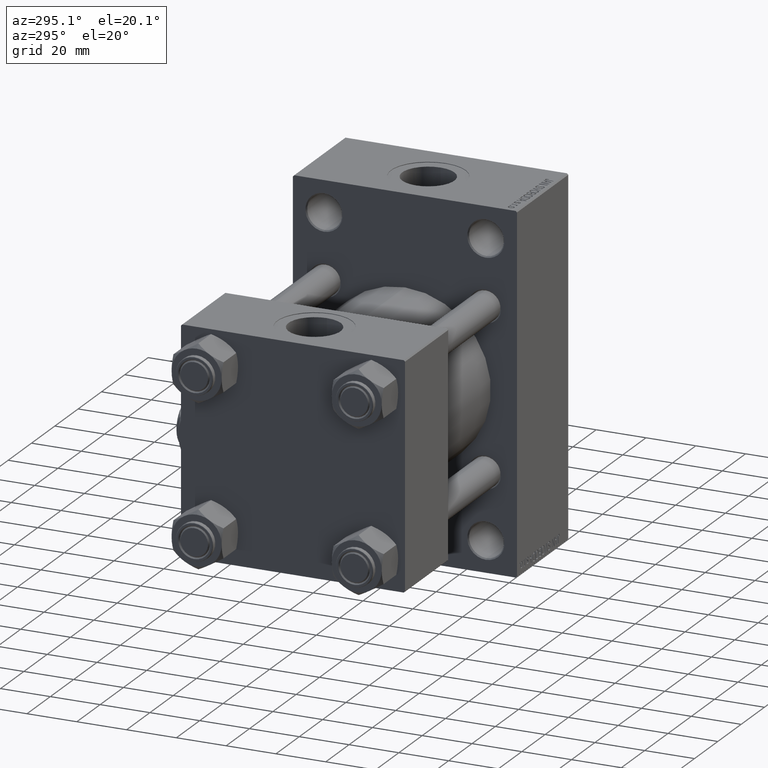
[diagram: clean part render]
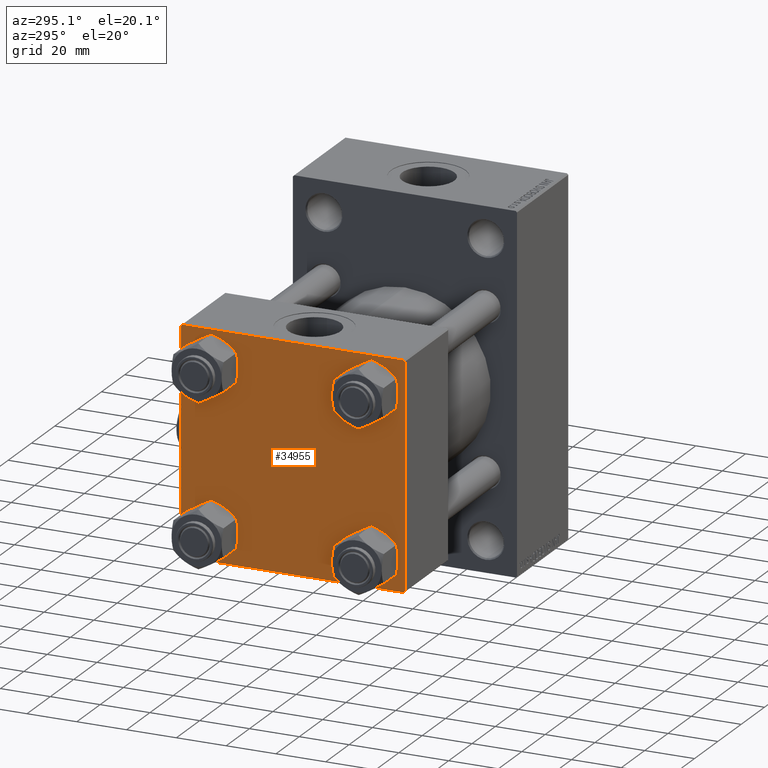
[diagram: same view with one face highlighted and labeled with its STEP entity id]
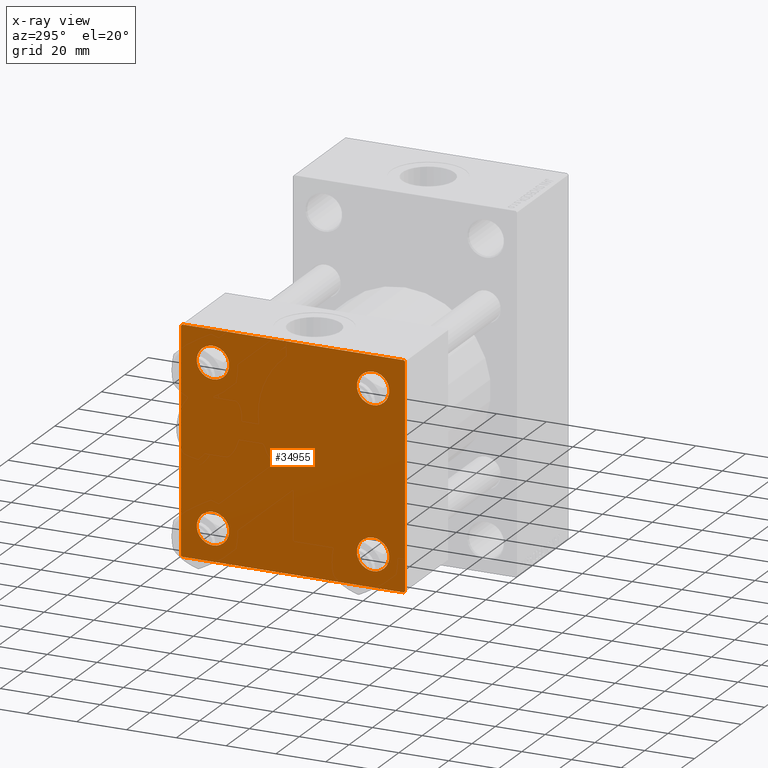
[diagram: x-ray of the same camera — body ghosted, the highlighted face saturated]
A machine part, auxiliary view. The second image highlights one B-rep face of the part: STEP entity #34955.
The next image is the same camera in x-ray: the body ghosted, the highlighted face saturated — about 0% of this face is hidden behind the body in this view.
In plain terms, the highlighted planar face has unit normal (-1, 0, 0).
Its self-contained STEP definition (entity closure, byte-faithful):
#38 = FACE_OUTER_BOUND ( 'NONE', #14113, .T. ) ;
#371 = VERTEX_POINT ( 'NONE', #9468 ) ;
#613 = DIRECTION ( 'NONE',  ( 1.000000000000000000, -0.000000000000000000, 0.000000000000000000 ) ) ;
#1024 = DIRECTION ( 'NONE',  ( 0.000000000000000000, 0.000000000000000000, 1.000000000000000000 ) ) ;
#1058 = VERTEX_POINT ( 'NONE', #23388 ) ;
#1464 = DIRECTION ( 'NONE',  ( -0.000000000000000000, -0.7071067811865474617, -0.7071067811865474617 ) ) ;
#1722 = AXIS2_PLACEMENT_3D ( 'NONE', #32489, #36729, #40711 ) ;
#1797 = ORIENTED_EDGE ( 'NONE', *, *, #6871, .T. ) ;
#2520 = CARTESIAN_POINT ( 'NONE',  ( 0.000000000000000000, -32.14999999999997726, 25.65000000000002700 ) ) ;
#2588 = ORIENTED_EDGE ( 'NONE', *, *, #9791, .T. ) ;
#2652 = VERTEX_POINT ( 'NONE', #19552 ) ;
#2929 = CARTESIAN_POINT ( 'NONE',  ( 0.000000000000000000, 44.74999999999936762, 44.75000000000061107 ) ) ;
#3309 = VECTOR ( 'NONE', #25354, 1000.000000000000000 ) ;
#3333 = CIRCLE ( 'NONE', #22449, 6.499999999999977796 ) ;
#4829 = VECTOR ( 'NONE', #46451, 1000.000000000000000 ) ;
#5354 = EDGE_CURVE ( 'NONE', #14965, #40426, #20455, .T. ) ;
#5458 = CARTESIAN_POINT ( 'NONE',  ( 0.000000000000000000, -32.14999999999997726, 32.15000000000000568 ) ) ;
#5948 = DIRECTION ( 'NONE',  ( 0.000000000000000000, 0.000000000000000000, 1.000000000000000000 ) ) ;
#6294 = CIRCLE ( 'NONE', #22205, 6.500000000000019540 ) ;
#6315 = LINE ( 'NONE', #36723, #6449 ) ;
#6407 = DIRECTION ( 'NONE',  ( 0.000000000000000000, 0.000000000000000000, 1.000000000000000000 ) ) ;
#6409 = EDGE_LOOP ( 'NONE', ( #25358, #43237 ) ) ;
#6449 = VECTOR ( 'NONE', #21771, 1000.000000000000000 ) ;
#6464 = EDGE_LOOP ( 'NONE', ( #40464, #28568 ) ) ;
#6581 = DIRECTION ( 'NONE',  ( 0.000000000000000000, 0.000000000000000000, 1.000000000000000000 ) ) ;
#6871 = EDGE_CURVE ( 'NONE', #39146, #48492, #40816, .T. ) ;
#7190 = ORIENTED_EDGE ( 'NONE', *, *, #14746, .T. ) ;
#7595 = VECTOR ( 'NONE', #41838, 1000.000000000000000 ) ;
#8444 = CARTESIAN_POINT ( 'NONE',  ( 0.000000000000000000, -44.49999999999997158, 44.99999999999998579 ) ) ;
#9405 = CARTESIAN_POINT ( 'NONE',  ( 0.000000000000000000, -32.14999999999997726, -32.15000000000000568 ) ) ;
#9468 = CARTESIAN_POINT ( 'NONE',  ( 0.000000000000000000, 44.50000000000000000, -44.99999999999999289 ) ) ;
#9791 = EDGE_CURVE ( 'NONE', #30708, #34027, #42925, .T. ) ;
#11281 = PLANE ( 'NONE',  #31623 ) ;
#11757 = EDGE_CURVE ( 'NONE', #2652, #24405, #34398, .T. ) ;
#12567 = CARTESIAN_POINT ( 'NONE',  ( 0.000000000000000000, 45.00000000000000000, -44.99999999999999289 ) ) ;
#13434 = LINE ( 'NONE', #40342, #45157 ) ;
#13744 = EDGE_CURVE ( 'NONE', #39146, #24405, #6315, .T. ) ;
#14062 = CARTESIAN_POINT ( 'NONE',  ( 0.000000000000000000, 32.14999999999999147, -32.14999999999999858 ) ) ;
#14113 = EDGE_LOOP ( 'NONE', ( #7190, #36451, #38393, #24709, #31608, #17772, #23232, #1797 ) ) ;
#14384 = CARTESIAN_POINT ( 'NONE',  ( 0.000000000000000000, 32.14999999999999147, 38.65000000000001990 ) ) ;
#14746 = EDGE_CURVE ( 'NONE', #48492, #19570, #33976, .T. ) ;
#14772 = CARTESIAN_POINT ( 'NONE',  ( 0.000000000000000000, 0.000000000000000000, 0.000000000000000000 ) ) ;
#14965 = VERTEX_POINT ( 'NONE', #39192 ) ;
#15072 = AXIS2_PLACEMENT_3D ( 'NONE', #14062, #29258, #6581 ) ;
#15270 = CIRCLE ( 'NONE', #27124, 6.499999999999977796 ) ;
#16064 = LINE ( 'NONE', #12567, #4829 ) ;
#16382 = EDGE_CURVE ( 'NONE', #43587, #43665, #15270, .T. ) ;
#16901 = DIRECTION ( 'NONE',  ( 1.000000000000000000, -0.000000000000000000, 0.000000000000000000 ) ) ;
#17772 = ORIENTED_EDGE ( 'NONE', *, *, #11757, .T. ) ;
#18150 = DIRECTION ( 'NONE',  ( 0.000000000000000000, 0.7071067811865574537, -0.7071067811865376918 ) ) ;
#18281 = FACE_BOUND ( 'NONE', #6409, .T. ) ;
#19552 = CARTESIAN_POINT ( 'NONE',  ( 0.000000000000000000, -45.00000000000000000, 44.49999999999998579 ) ) ;
#19570 = VERTEX_POINT ( 'NONE', #23182 ) ;
#19659 = CARTESIAN_POINT ( 'NONE',  ( 0.000000000000000000, 32.14999999999999147, -25.64999999999997726 ) ) ;
#20455 = CIRCLE ( 'NONE', #48309, 6.500000000000019540 ) ;
#20539 = EDGE_CURVE ( 'NONE', #40619, #27542, #43931, .T. ) ;
#21771 = DIRECTION ( 'NONE',  ( 0.000000000000000000, -1.000000000000000000, -2.312964634635742957E-16 ) ) ;
#22008 = FACE_BOUND ( 'NONE', #44509, .T. ) ;
#22205 = AXIS2_PLACEMENT_3D ( 'NONE', #31798, #24316, #39513 ) ;
#22404 = EDGE_CURVE ( 'NONE', #2652, #1058, #47206, .T. ) ;
#22449 = AXIS2_PLACEMENT_3D ( 'NONE', #5458, #36360, #5948 ) ;
#23182 = CARTESIAN_POINT ( 'NONE',  ( 0.000000000000000000, 45.00000000000000000, -44.49999999999996447 ) ) ;
#23232 = ORIENTED_EDGE ( 'NONE', *, *, #13744, .F. ) ;
#23271 = CARTESIAN_POINT ( 'NONE',  ( 0.000000000000000000, 44.49999999999997158, 45.00000000000000711 ) ) ;
#23388 = CARTESIAN_POINT ( 'NONE',  ( 0.000000000000000000, -45.00000000000000000, -44.49999999999997158 ) ) ;
#23397 = CARTESIAN_POINT ( 'NONE',  ( 0.000000000000000000, -44.74999999999873523, -44.75000000000122924 ) ) ;
#24316 = DIRECTION ( 'NONE',  ( 1.000000000000000000, -0.000000000000000000, 0.000000000000000000 ) ) ;
#24405 = VERTEX_POINT ( 'NONE', #8444 ) ;
#24502 = VECTOR ( 'NONE', #18150, 999.9999999999998863 ) ;
#24694 = CARTESIAN_POINT ( 'NONE',  ( 0.000000000000000000, -32.14999999999997726, 32.15000000000000568 ) ) ;
#24709 = ORIENTED_EDGE ( 'NONE', *, *, #32083, .T. ) ;
#25354 = DIRECTION ( 'NONE',  ( 0.000000000000000000, 0.000000000000000000, -1.000000000000000000 ) ) ;
#25358 = ORIENTED_EDGE ( 'NONE', *, *, #20539, .T. ) ;
#25385 = CARTESIAN_POINT ( 'NONE',  ( 0.000000000000000000, -32.14999999999997726, -25.65000000000002700 ) ) ;
#25998 = DIRECTION ( 'NONE',  ( -1.000000000000000000, 0.000000000000000000, -0.000000000000000000 ) ) ;
#27124 = AXIS2_PLACEMENT_3D ( 'NONE', #9405, #16901, #6407 ) ;
#27337 = VECTOR ( 'NONE', #36912, 1000.000000000000000 ) ;
#27394 = LINE ( 'NONE', #23397, #7595 ) ;
#27542 = VERTEX_POINT ( 'NONE', #2520 ) ;
#27913 = EDGE_CURVE ( 'NONE', #34027, #30708, #33058, .T. ) ;
#28524 = ORIENTED_EDGE ( 'NONE', *, *, #27913, .T. ) ;
#28568 = ORIENTED_EDGE ( 'NONE', *, *, #5354, .T. ) ;
#29033 = DIRECTION ( 'NONE',  ( -0.000000000000000000, 0.7071067811865474617, 0.7071067811865474617 ) ) ;
#29258 = DIRECTION ( 'NONE',  ( 1.000000000000000000, -0.000000000000000000, 0.000000000000000000 ) ) ;
#29572 = EDGE_LOOP ( 'NONE', ( #43542, #41203 ) ) ;
#29964 = DIRECTION ( 'NONE',  ( -0.000000000000000000, 0.000000000000000000, 1.000000000000000000 ) ) ;
#30137 = CARTESIAN_POINT ( 'NONE',  ( 0.000000000000000000, 32.14999999999999147, -38.65000000000001990 ) ) ;
#30220 = VECTOR ( 'NONE', #29033, 1000.000000000000114 ) ;
#30651 = CARTESIAN_POINT ( 'NONE',  ( -0.000000000000000000, -44.74999999999999289, 44.74999999999999289 ) ) ;
#30658 = AXIS2_PLACEMENT_3D ( 'NONE', #35016, #613, #46216 ) ;
#30708 = VERTEX_POINT ( 'NONE', #19659 ) ;
#31608 = ORIENTED_EDGE ( 'NONE', *, *, #22404, .F. ) ;
#31623 = AXIS2_PLACEMENT_3D ( 'NONE', #14772, #25998, #29964 ) ;
#31798 = CARTESIAN_POINT ( 'NONE',  ( 0.000000000000000000, 32.14999999999999147, 32.14999999999999858 ) ) ;
#32068 = VERTEX_POINT ( 'NONE', #42581 ) ;
#32083 = EDGE_CURVE ( 'NONE', #32068, #1058, #27394, .T. ) ;
#32378 = DIRECTION ( 'NONE',  ( 1.000000000000000000, -0.000000000000000000, 0.000000000000000000 ) ) ;
#32489 = CARTESIAN_POINT ( 'NONE',  ( 0.000000000000000000, -32.14999999999997726, -32.15000000000000568 ) ) ;
#32623 = DIRECTION ( 'NONE',  ( 0.000000000000000000, 0.000000000000000000, 1.000000000000000000 ) ) ;
#33019 = CARTESIAN_POINT ( 'NONE',  ( 0.000000000000000000, -32.14999999999997726, 38.64999999999999147 ) ) ;
#33058 = CIRCLE ( 'NONE', #30658, 6.500000000000019540 ) ;
#33976 = LINE ( 'NONE', #44272, #3309 ) ;
#34027 = VERTEX_POINT ( 'NONE', #30137 ) ;
#34398 = LINE ( 'NONE', #30651, #30220 ) ;
#34955 = ADVANCED_FACE ( 'NONE', ( #18281, #48906, #22008, #37211, #38 ), #11281, .T. ) ;
#35016 = CARTESIAN_POINT ( 'NONE',  ( 0.000000000000000000, 32.14999999999999147, -32.14999999999999858 ) ) ;
#35177 = DIRECTION ( 'NONE',  ( 1.000000000000000000, -0.000000000000000000, 0.000000000000000000 ) ) ;
#36173 = EDGE_CURVE ( 'NONE', #19570, #371, #13434, .T. ) ;
#36360 = DIRECTION ( 'NONE',  ( 1.000000000000000000, -0.000000000000000000, 0.000000000000000000 ) ) ;
#36451 = ORIENTED_EDGE ( 'NONE', *, *, #36173, .T. ) ;
#36723 = CARTESIAN_POINT ( 'NONE',  ( 0.000000000000000000, 45.00000000000000000, 45.00000000000000711 ) ) ;
#36729 = DIRECTION ( 'NONE',  ( 1.000000000000000000, -0.000000000000000000, 0.000000000000000000 ) ) ;
#36912 = DIRECTION ( 'NONE',  ( 0.000000000000000000, 0.000000000000000000, -1.000000000000000000 ) ) ;
#37211 = FACE_BOUND ( 'NONE', #6464, .T. ) ;
#38342 = CIRCLE ( 'NONE', #1722, 6.499999999999977796 ) ;
#38393 = ORIENTED_EDGE ( 'NONE', *, *, #45882, .T. ) ;
#39146 = VERTEX_POINT ( 'NONE', #23271 ) ;
#39192 = CARTESIAN_POINT ( 'NONE',  ( 0.000000000000000000, 32.14999999999999147, 25.64999999999997726 ) ) ;
#39287 = CARTESIAN_POINT ( 'NONE',  ( 0.000000000000000000, -32.14999999999997726, -38.64999999999998437 ) ) ;
#39513 = DIRECTION ( 'NONE',  ( 0.000000000000000000, 0.000000000000000000, 1.000000000000000000 ) ) ;
#40342 = CARTESIAN_POINT ( 'NONE',  ( 0.000000000000000000, 44.74999999999999289, -44.74999999999999289 ) ) ;
#40426 = VERTEX_POINT ( 'NONE', #14384 ) ;
#40464 = ORIENTED_EDGE ( 'NONE', *, *, #41246, .T. ) ;
#40619 = VERTEX_POINT ( 'NONE', #33019 ) ;
#40711 = DIRECTION ( 'NONE',  ( 0.000000000000000000, 0.000000000000000000, 1.000000000000000000 ) ) ;
#40816 = LINE ( 'NONE', #2929, #24502 ) ;
#41130 = CARTESIAN_POINT ( 'NONE',  ( 0.000000000000000000, -45.00000000000000000, 44.99999999999998579 ) ) ;
#41203 = ORIENTED_EDGE ( 'NONE', *, *, #46988, .T. ) ;
#41246 = EDGE_CURVE ( 'NONE', #40426, #14965, #6294, .T. ) ;
#41838 = DIRECTION ( 'NONE',  ( 0.000000000000000000, -0.7071067811865672237, 0.7071067811865279218 ) ) ;
#42581 = CARTESIAN_POINT ( 'NONE',  ( 0.000000000000000000, -44.49999999999994316, -45.00000000000000000 ) ) ;
#42925 = CIRCLE ( 'NONE', #15072, 6.500000000000019540 ) ;
#43237 = ORIENTED_EDGE ( 'NONE', *, *, #47553, .T. ) ;
#43542 = ORIENTED_EDGE ( 'NONE', *, *, #16382, .T. ) ;
#43587 = VERTEX_POINT ( 'NONE', #25385 ) ;
#43665 = VERTEX_POINT ( 'NONE', #39287 ) ;
#43931 = CIRCLE ( 'NONE', #45527, 6.499999999999977796 ) ;
#44272 = CARTESIAN_POINT ( 'NONE',  ( 0.000000000000000000, 45.00000000000000000, 45.00000000000000711 ) ) ;
#44509 = EDGE_LOOP ( 'NONE', ( #2588, #28524 ) ) ;
#45157 = VECTOR ( 'NONE', #1464, 1000.000000000000114 ) ;
#45527 = AXIS2_PLACEMENT_3D ( 'NONE', #24694, #35177, #1024 ) ;
#45882 = EDGE_CURVE ( 'NONE', #371, #32068, #16064, .T. ) ;
#46216 = DIRECTION ( 'NONE',  ( 0.000000000000000000, 0.000000000000000000, 1.000000000000000000 ) ) ;
#46451 = DIRECTION ( 'NONE',  ( 0.000000000000000000, -1.000000000000000000, -7.709882115452476934E-17 ) ) ;
#46967 = CARTESIAN_POINT ( 'NONE',  ( 0.000000000000000000, 45.00000000000000000, 44.49999999999999289 ) ) ;
#46988 = EDGE_CURVE ( 'NONE', #43665, #43587, #38342, .T. ) ;
#47206 = LINE ( 'NONE', #41130, #27337 ) ;
#47553 = EDGE_CURVE ( 'NONE', #27542, #40619, #3333, .T. ) ;
#48080 = CARTESIAN_POINT ( 'NONE',  ( 0.000000000000000000, 32.14999999999999147, 32.14999999999999858 ) ) ;
#48309 = AXIS2_PLACEMENT_3D ( 'NONE', #48080, #32378, #32623 ) ;
#48492 = VERTEX_POINT ( 'NONE', #46967 ) ;
#48906 = FACE_BOUND ( 'NONE', #29572, .T. ) ;